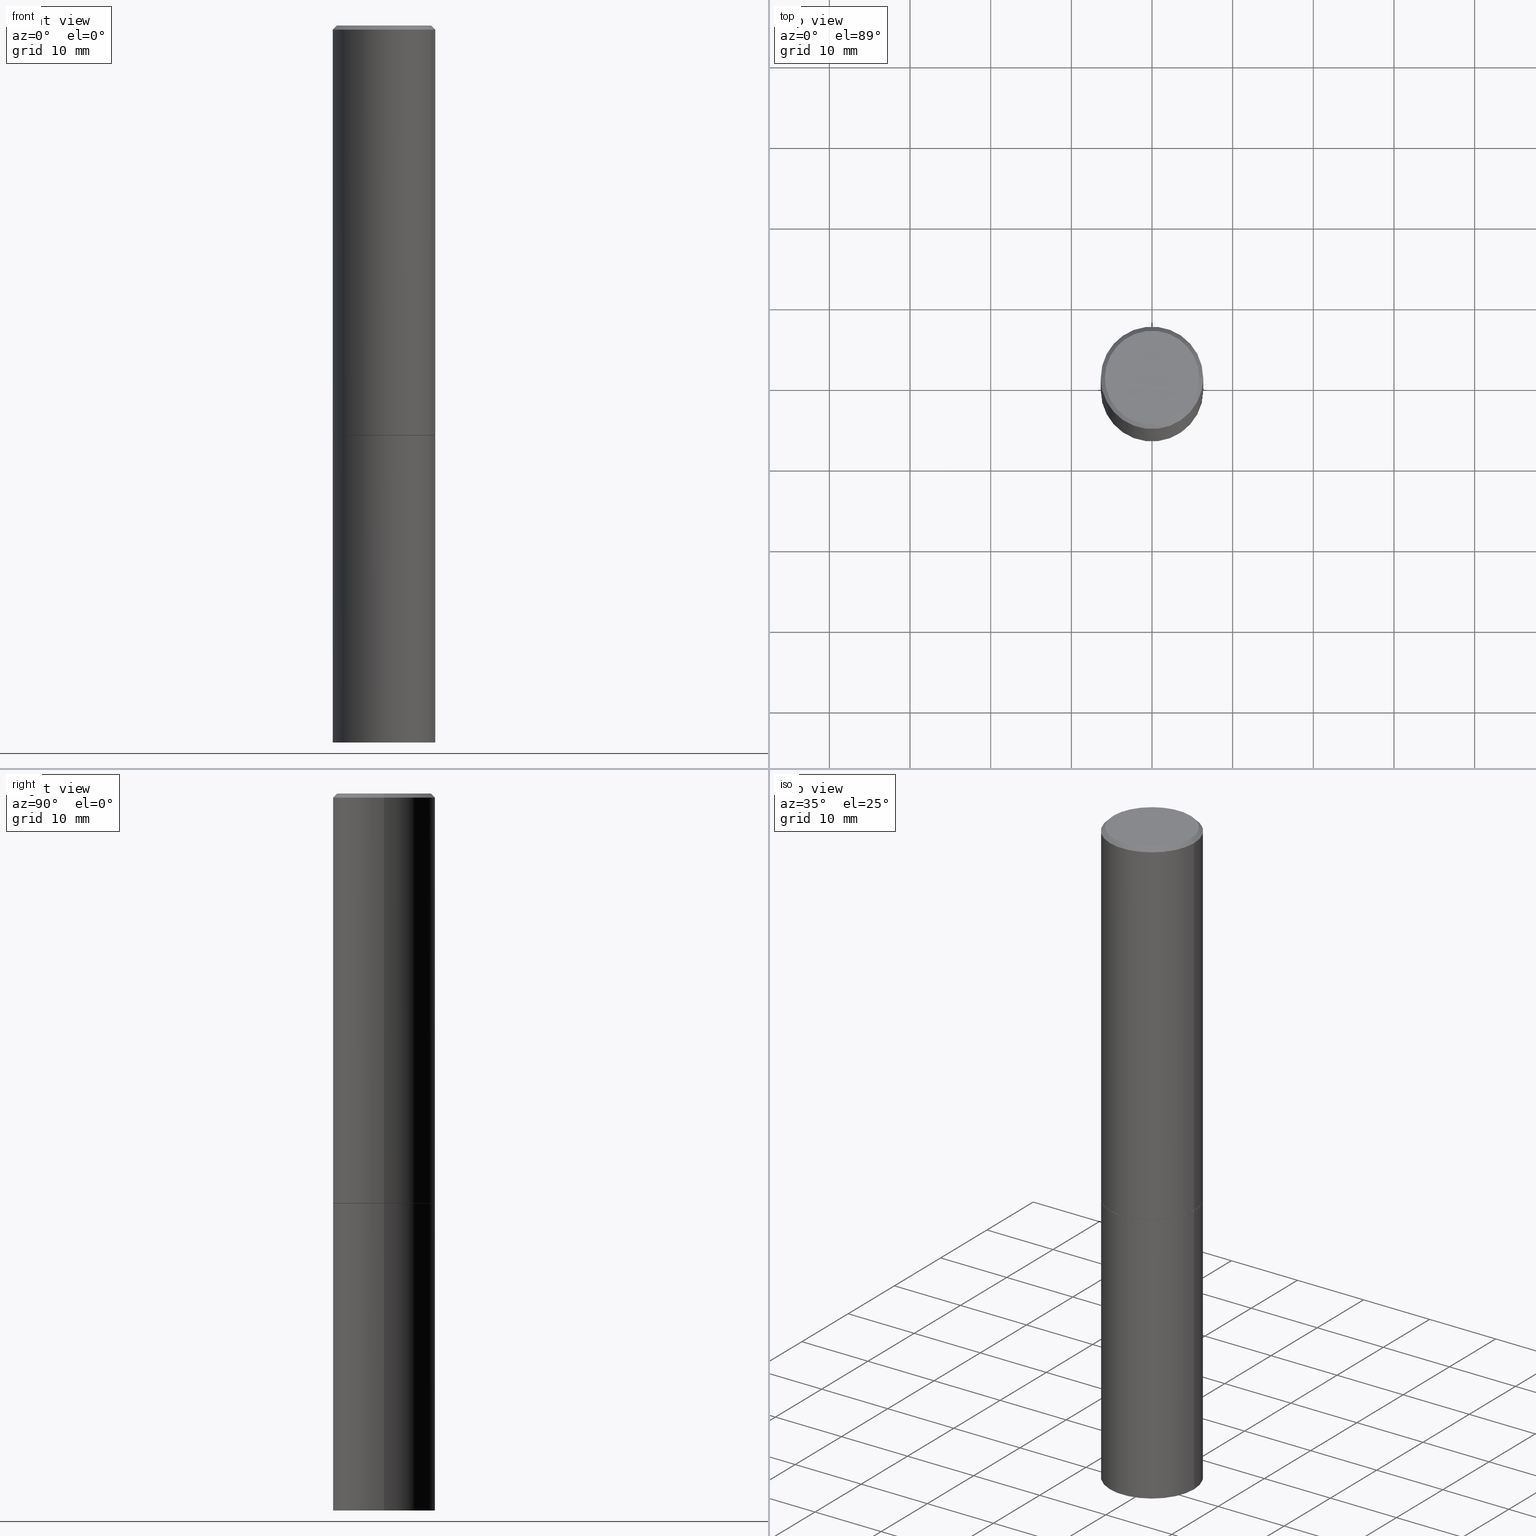
[diagram: canonical four-view strip — front | top / right | iso, engineering-drawing reading convention]
A machine part, canonical four-view strip (front | top / right | iso — engineering-drawing reading convention). The complete STEP part file that produces these views, byte-faithful:
ISO-10303-21;
HEADER;
FILE_DESCRIPTION (( 'STEP AP203' ),
    '1' );
FILE_NAME ('37510.STEP',
    '2024-02-27T22:05:50',
    ( '' ),
    ( '' ),
    'SwSTEP 2.0',
    'SolidWorks 2023',
    '' );
FILE_SCHEMA (( 'CONFIG_CONTROL_DESIGN' ));
ENDSEC;

DATA;
#1 = APPROVAL_ROLE ( '' ) ;
#2 = LINE ( 'NONE', #138, #258 ) ;
#3 = ADVANCED_FACE ( 'NONE', ( #360 ), #324, .T. ) ;
#4 = CARTESIAN_POINT ( 'NONE',  ( -0.2299999999999997602, 1.640996229256270941E-15, 4.268512490089056766E-18 ) ) ;
#5 = LINE ( 'NONE', #335, #282 ) ;
#6 = AXIS2_PLACEMENT_3D ( 'NONE', #304, #273, #74 ) ;
#7 = ADVANCED_FACE ( 'NONE', ( #47 ), #348, .T. ) ;
#8 = CARTESIAN_POINT ( 'NONE',  ( 0.2499999999999998057, -1.784954126219744611E-15, -0.02000000000000005940 ) ) ;
#9 = DIRECTION ( 'NONE',  ( -2.445468806185136877E-29, 3.491481338843145188E-15, 1.000000000000000000 ) ) ;
#10 = PLANE ( 'NONE',  #99 ) ;
#11 = CARTESIAN_POINT ( 'NONE',  ( 4.890937612370288047E-31, -6.982962677686311331E-17, -0.02000000000000005940 ) ) ;
#12 = ADVANCED_FACE ( 'NONE', ( #178 ), #333, .T. ) ;
#13 = VECTOR ( 'NONE', #9, 39.37007874015748143 ) ;
#14 =( NAMED_UNIT ( * ) SI_UNIT ( $, .STERADIAN. ) SOLID_ANGLE_UNIT ( ) );
#15 = PRODUCT_DEFINITION ( 'UNKNOWN', '', #176, #180 ) ;
#16 = EDGE_CURVE ( 'NONE', #25, #164, #83, .T. ) ;
#17 = SECURITY_CLASSIFICATION ( '', '', #321 ) ;
#18 = AXIS2_PLACEMENT_3D ( 'NONE', #223, #196, #301 ) ;
#19 = CARTESIAN_POINT ( 'NONE',  ( 0.2299999999999997602, -1.681434332853597631E-15, 4.268512490111905999E-18 ) ) ;
#20 = PERSON_AND_ORGANIZATION ( #291, #266 ) ;
#21 = ORIENTED_EDGE ( 'NONE', *, *, #289, .F. ) ;
#22 = PRODUCT ( '37510', '37510', '', ( #252 ) ) ;
#23 = DATE_AND_TIME ( #341, #106 ) ;
#24 = ORIENTED_EDGE ( 'NONE', *, *, #171, .F. ) ;
#25 = VERTEX_POINT ( 'NONE', #146 ) ;
#26 = PRODUCT_DEFINITION_SHAPE ( 'NONE', 'NONE',  #15 ) ;
#27 = DIRECTION ( 'NONE',  ( 1.000000000000000000, -6.982962677686266711E-15, 0.000000000000000000 ) ) ;
#28 = CONICAL_SURFACE ( 'NONE', #287, 0.2489999999999999991, 0.7853981633974141952 ) ;
#29 = AXIS2_PLACEMENT_3D ( 'NONE', #315, #262, #129 ) ;
#30 = CARTESIAN_POINT ( 'NONE',  ( 0.000000000000000000, 0.000000000000000000, 0.000000000000000000 ) ) ;
#31 = DIRECTION ( 'NONE',  ( -0.7071067811865469066, 2.468850131082249961E-15, -0.7071067811865482389 ) ) ;
#32 = CARTESIAN_POINT ( 'NONE',  ( 0.2500000000000000000, -1.745740669421566678E-15, 1.219044193948983948E-29 ) ) ;
#33 = CARTESIAN_POINT ( 'NONE',  ( -0.2499999999999998057, 1.675911042644702196E-15, -0.02000000000000005940 ) ) ;
#34 = VECTOR ( 'NONE', #120, 39.37007874015748143 ) ;
#35 = AXIS2_PLACEMENT_3D ( 'NONE', #51, #170, #132 ) ;
#36 = CARTESIAN_POINT ( 'NONE',  ( 0.2499999999999998890, -1.745740669421565889E-15, 1.219044193948983388E-29 ) ) ;
#37 = EDGE_CURVE ( 'NONE', #248, #109, #139, .T. ) ;
#38 = DIRECTION ( 'NONE',  ( 1.000000000000000000, -6.982962677686265922E-15, 4.876176775795935793E-29 ) ) ;
#39 = FACE_OUTER_BOUND ( 'NONE', #271, .T. ) ;
#40 = PLANE ( 'NONE',  #29 ) ;
#41 = APPROVAL_DATE_TIME ( #268, #279 ) ;
#42 = PERSON_AND_ORGANIZATION ( #291, #266 ) ;
#43 = AXIS2_PLACEMENT_3D ( 'NONE', #362, #113, #330 ) ;
#44 = VERTEX_POINT ( 'NONE', #200 ) ;
#45 = PERSON_AND_ORGANIZATION_ROLE ( 'design_supplier' ) ;
#46 = ORIENTED_EDGE ( 'NONE', *, *, #292, .F. ) ;
#47 = FACE_OUTER_BOUND ( 'NONE', #112, .T. ) ;
#48 = ORIENTED_EDGE ( 'NONE', *, *, #286, .T. ) ;
#49 = CC_DESIGN_PERSON_AND_ORGANIZATION_ASSIGNMENT ( #20, #320, ( #176 ) ) ;
#50 = ORIENTED_EDGE ( 'NONE', *, *, #224, .F. ) ;
#51 = CARTESIAN_POINT ( 'NONE',  ( 8.559140821647976968E-29, -1.222018468595100934E-14, -3.500000000000000000 ) ) ;
#52 = APPROVAL_STATUS ( 'not_yet_approved' ) ;
#53 = CIRCLE ( 'NONE', #35, 0.2500000000000000000 ) ;
#54 = FACE_OUTER_BOUND ( 'NONE', #322, .T. ) ;
#55 = PERSON_AND_ORGANIZATION_ROLE ( 'creator' ) ;
#56 = ORIENTED_EDGE ( 'NONE', *, *, #199, .F. ) ;
#57 = COORDINATED_UNIVERSAL_TIME_OFFSET ( 5, 0, .BEHIND. ) ;
#58 = DIRECTION ( 'NONE',  ( -2.445468806185136597E-29, 3.491481338843145583E-15, 1.000000000000000000 ) ) ;
#59 = AXIS2_PLACEMENT_3D ( 'NONE', #285, #165, #73 ) ;
#60 = DIRECTION ( 'NONE',  ( 2.445468806185136597E-29, -3.491481338843145583E-15, -1.000000000000000000 ) ) ;
#61 = CARTESIAN_POINT ( 'NONE',  ( 4.890937612370272633E-29, -6.982962677686290376E-15, -1.999999999999999778 ) ) ;
#62 = APPROVAL_ROLE ( '' ) ;
#63 = DIRECTION ( 'NONE',  ( -2.445468806185136597E-29, 3.491481338843145583E-15, 1.000000000000000000 ) ) ;
#64 = VECTOR ( 'NONE', #311, 39.37007874015748143 ) ;
#65 = AXIS2_PLACEMENT_3D ( 'NONE', #160, #356, #107 ) ;
#66 = DIRECTION ( 'NONE',  ( 1.000000000000000000, -6.982962677686266711E-15, 0.000000000000000000 ) ) ;
#67 =( LENGTH_UNIT ( ) NAMED_UNIT ( * ) SI_UNIT ( $, .METRE. ) );
#68 = DIMENSIONAL_EXPONENTS ( 1.000000000000000000, 0.000000000000000000, 0.000000000000000000, 0.000000000000000000, 0.000000000000000000, 0.000000000000000000, 0.000000000000000000 ) ;
#69 = FACE_OUTER_BOUND ( 'NONE', #76, .T. ) ;
#70 = AXIS2_PLACEMENT_3D ( 'NONE', #88, #342, #174 ) ;
#71 = FACE_OUTER_BOUND ( 'NONE', #77, .T. ) ;
#72 = VERTEX_POINT ( 'NONE', #33 ) ;
#73 = DIRECTION ( 'NONE',  ( 1.000000000000000000, -6.982962677686266711E-15, 4.876176775795935793E-29 ) ) ;
#74 = DIRECTION ( 'NONE',  ( 1.000000000000000000, -6.982962677686266711E-15, 4.876176775795935793E-29 ) ) ;
#75 = ORIENTED_EDGE ( 'NONE', *, *, #166, .F. ) ;
#76 = EDGE_LOOP ( 'NONE', ( #46, #274 ) ) ;
#77 = EDGE_LOOP ( 'NONE', ( #277, #141, #359, #75 ) ) ;
#78 = ORIENTED_EDGE ( 'NONE', *, *, #166, .T. ) ;
#79 = DIRECTION ( 'NONE',  ( -2.445468806185136597E-29, 3.491481338843145583E-15, 1.000000000000000000 ) ) ;
#80 = EDGE_CURVE ( 'NONE', #72, #193, #265, .T. ) ;
#81 = DIRECTION ( 'NONE',  ( 0.000000000000000000, 0.000000000000000000, 1.000000000000000000 ) ) ;
#82 = DATE_AND_TIME ( #225, #159 ) ;
#83 = LINE ( 'NONE', #121, #167 ) ;
#84 = CARTESIAN_POINT ( 'NONE',  ( 0.2489999999999999991, -8.721720384430171040E-15, -1.999999999999999778 ) ) ;
#85 = DATE_AND_TIME ( #331, #93 ) ;
#86 = CIRCLE ( 'NONE', #351, 0.2500000000000000000 ) ;
#87 = CC_DESIGN_PERSON_AND_ORGANIZATION_ASSIGNMENT ( #340, #55, ( #15 ) ) ;
#88 = CARTESIAN_POINT ( 'NONE',  ( 4.890937612370272633E-29, -6.982962677686290376E-15, -1.999999999999999778 ) ) ;
#89 = ORIENTED_EDGE ( 'NONE', *, *, #111, .F. ) ;
#90 = DATE_TIME_ROLE ( 'creation_date' ) ;
#91 = APPROVAL_DATE_TIME ( #254, #195 ) ;
#92 = DIRECTION ( 'NONE',  ( -2.445468806185136597E-29, 3.491481338843145583E-15, 1.000000000000000000 ) ) ;
#93 = LOCAL_TIME ( 17, 5, 50.00000000000000000, #281 ) ;
#94 = DIRECTION ( 'NONE',  ( -2.445468806185136877E-29, 3.491481338843145188E-15, 1.000000000000000000 ) ) ;
#95 = DIRECTION ( 'NONE',  ( 2.438088387897960049E-29, -3.491481338843145188E-15, -1.000000000000000000 ) ) ;
#96 = LENGTH_MEASURE_WITH_UNIT ( LENGTH_MEASURE( 0.02539999999999999897 ), #67 );
#97 = DIRECTION ( 'NONE',  ( -1.000000000000000000, 6.982962677686265922E-15, -4.876176775795935793E-29 ) ) ;
#98 = DIRECTION ( 'NONE',  ( 2.438088387897960049E-29, -3.491481338843145188E-15, -1.000000000000000000 ) ) ;
#99 = AXIS2_PLACEMENT_3D ( 'NONE', #186, #261, #38 ) ;
#100 = EDGE_LOOP ( 'NONE', ( #293, #275, #78, #50 ) ) ;
#101 = CARTESIAN_POINT ( 'NONE',  ( 0.000000000000000000, 0.000000000000000000, 0.000000000000000000 ) ) ;
#102 = VERTEX_POINT ( 'NONE', #206 ) ;
#103 = EDGE_CURVE ( 'NONE', #325, #102, #86, .T. ) ;
#104 = ORIENTED_EDGE ( 'NONE', *, *, #317, .T. ) ;
#105 = ORIENTED_EDGE ( 'NONE', *, *, #286, .F. ) ;
#106 = LOCAL_TIME ( 17, 5, 50.00000000000000000, #57 ) ;
#107 = DIRECTION ( 'NONE',  ( -1.000000000000000000, 6.982962677686266711E-15, 0.000000000000000000 ) ) ;
#108 = EDGE_CURVE ( 'NONE', #325, #72, #2, .T. ) ;
#109 = VERTEX_POINT ( 'NONE', #4 ) ;
#110 = APPLICATION_PROTOCOL_DEFINITION ( 'international standard', 'config_control_design', 1994, #249 ) ;
#111 = EDGE_CURVE ( 'NONE', #248, #193, #177, .T. ) ;
#112 = EDGE_LOOP ( 'NONE', ( #89, #105, #329, #299 ) ) ;
#113 = DIRECTION ( 'NONE',  ( -2.445468806185136597E-29, 3.491481338843145583E-15, 1.000000000000000000 ) ) ;
#114 = PERSON_AND_ORGANIZATION_ROLE ( 'design_owner' ) ;
#115 = FACE_OUTER_BOUND ( 'NONE', #100, .T. ) ;
#116 = VECTOR ( 'NONE', #149, 39.37007874015748854 ) ;
#117 = CARTESIAN_POINT ( 'NONE',  ( -1.043851414335219820E-46, 1.490343170380447200E-32, 4.268512490100411279E-18 ) ) ;
#118 = CARTESIAN_POINT ( 'NONE',  ( 8.559140821647976968E-29, -1.222018468595100934E-14, -3.500000000000000000 ) ) ;
#119 = LINE ( 'NONE', #32, #64 ) ;
#120 = DIRECTION ( 'NONE',  ( 0.7071067811865469066, -7.319954787623254468E-15, -0.7071067811865482389 ) ) ;
#121 = CARTESIAN_POINT ( 'NONE',  ( -0.2500000000000000000, 1.776356839400250465E-15, -1.229733772563726445E-29 ) ) ;
#122 = AXIS2_PLACEMENT_3D ( 'NONE', #234, #239, #66 ) ;
#123 = DIRECTION ( 'NONE',  ( 1.000000000000000000, -6.982962677686266711E-15, 0.000000000000000000 ) ) ;
#124 = PLANE ( 'NONE',  #154 ) ;
#125 = CIRCLE ( 'NONE', #147, 0.2500000000000000000 ) ;
#126 = CIRCLE ( 'NONE', #122, 0.2500000000000000000 ) ;
#127 = CARTESIAN_POINT ( 'NONE',  ( 0.2489999999999999991, -8.721720384430171040E-15, -1.999999999999999778 ) ) ;
#128 = PRODUCT_RELATED_PRODUCT_CATEGORY ( 'detail', '', ( #22 ) ) ;
#129 = DIRECTION ( 'NONE',  ( -1.000000000000000000, 6.982962677686265922E-15, -4.876176775795935793E-29 ) ) ;
#130 = ADVANCED_FACE ( 'NONE', ( #305 ), #28, .T. ) ;
#131 = ORIENTED_EDGE ( 'NONE', *, *, #229, .T. ) ;
#132 = DIRECTION ( 'NONE',  ( 1.000000000000000000, -6.982962677686270655E-15, 0.000000000000000000 ) ) ;
#133 = ORIENTED_EDGE ( 'NONE', *, *, #354, .T. ) ;
#134 = CC_DESIGN_APPROVAL ( #279, ( #17 ) ) ;
#135 = ORIENTED_EDGE ( 'NONE', *, *, #181, .F. ) ;
#136 = ORIENTED_EDGE ( 'NONE', *, *, #171, .T. ) ;
#137 = EDGE_LOOP ( 'NONE', ( #169, #136, #221, #241 ) ) ;
#138 = CARTESIAN_POINT ( 'NONE',  ( -0.2499999999999998890, 1.776356839400249676E-15, -1.229733772563726025E-29 ) ) ;
#139 = CIRCLE ( 'NONE', #212, 0.2299999999999997602 ) ;
#140 = DIRECTION ( 'NONE',  ( 1.000000000000000000, -6.982962677686267499E-15, 4.876225828469313926E-29 ) ) ;
#141 = ORIENTED_EDGE ( 'NONE', *, *, #16, .T. ) ;
#142 = DIRECTION ( 'NONE',  ( -2.445468806185136597E-29, 3.491481338843145583E-15, 1.000000000000000000 ) ) ;
#143 = ADVANCED_FACE ( 'NONE', ( #71 ), #188, .T. ) ;
#144 = CARTESIAN_POINT ( 'NONE',  ( 4.890937612370272633E-29, -6.982962677686290376E-15, -1.999999999999999778 ) ) ;
#145 = CARTESIAN_POINT ( 'NONE',  ( 4.890937612370272633E-29, -6.982962677686290376E-15, -1.999999999999999778 ) ) ;
#146 = CARTESIAN_POINT ( 'NONE',  ( -0.2500000000000000000, -7.825216842418397817E-15, -3.500000000000000000 ) ) ;
#147 = AXIS2_PLACEMENT_3D ( 'NONE', #145, #257, #123 ) ;
#148 = SHAPE_DEFINITION_REPRESENTATION ( #26, #363 ) ;
#149 = DIRECTION ( 'NONE',  ( -0.7071067811865232589, 7.493145998870265808E-15, 0.7071067811865715536 ) ) ;
#150 = FACE_OUTER_BOUND ( 'NONE', #246, .T. ) ;
#151 = CALENDAR_DATE ( 2024, 27, 2 ) ;
#152 = DIRECTION ( 'NONE',  ( -1.000000000000000000, 6.982962677686265922E-15, -4.876176775795935793E-29 ) ) ;
#153 = AXIS2_PLACEMENT_3D ( 'NONE', #61, #250, #343 ) ;
#154 = AXIS2_PLACEMENT_3D ( 'NONE', #263, #98, #97 ) ;
#155 = CARTESIAN_POINT ( 'NONE',  ( -0.2489999999999999991, -5.208412811295418518E-15, -1.999999999999999778 ) ) ;
#156 = DATE_TIME_ROLE ( 'classification_date' ) ;
#157 = CIRCLE ( 'NONE', #323, 0.2500000000000000000 ) ;
#158 = APPLICATION_CONTEXT ( 'configuration controlled 3d designs of mechanical parts and assemblies' ) ;
#159 = LOCAL_TIME ( 17, 5, 50.00000000000000000, #364 ) ;
#160 = CARTESIAN_POINT ( 'NONE',  ( 4.890937612370288047E-31, -6.982962677686311331E-17, -0.02000000000000005940 ) ) ;
#161 = PERSON_AND_ORGANIZATION_ROLE ( 'classification_officer' ) ;
#162 = EDGE_LOOP ( 'NONE', ( #358, #190, #306, #219 ) ) ;
#163 = ORIENTED_EDGE ( 'NONE', *, *, #312, .T. ) ;
#164 = VERTEX_POINT ( 'NONE', #253 ) ;
#165 = DIRECTION ( 'NONE',  ( -2.445468806185136597E-29, 3.491481338843145583E-15, 1.000000000000000000 ) ) ;
#166 = EDGE_CURVE ( 'NONE', #297, #44, #119, .T. ) ;
#167 = VECTOR ( 'NONE', #94, 39.37007874015748143 ) ;
#168 = APPROVAL_PERSON_ORGANIZATION ( #267, #279, #182 ) ;
#169 = ORIENTED_EDGE ( 'NONE', *, *, #181, .T. ) ;
#170 = DIRECTION ( 'NONE',  ( -2.445468806185136597E-29, 3.491481338843145583E-15, 1.000000000000000000 ) ) ;
#171 = EDGE_CURVE ( 'NONE', #346, #325, #183, .T. ) ;
#172 = CARTESIAN_POINT ( 'NONE',  ( -1.043851414335219820E-46, 1.490343170380447200E-32, 4.268512490100411279E-18 ) ) ;
#173 = EDGE_CURVE ( 'NONE', #25, #297, #157, .T. ) ;
#174 = DIRECTION ( 'NONE',  ( 1.000000000000000000, -6.982962677686266711E-15, 0.000000000000000000 ) ) ;
#175 = CC_DESIGN_PERSON_AND_ORGANIZATION_ASSIGNMENT ( #42, #45, ( #176 ) ) ;
#176 = PRODUCT_DEFINITION_FORMATION_WITH_SPECIFIED_SOURCE ( 'ANY', '', #22, .NOT_KNOWN. ) ;
#177 = LINE ( 'NONE', #205, #34 ) ;
#178 = FACE_OUTER_BOUND ( 'NONE', #162, .T. ) ;
#179 = CARTESIAN_POINT ( 'NONE',  ( -0.2489999999999999991, -5.213711265643640920E-15, -1.999999999999999778 ) ) ;
#180 = DESIGN_CONTEXT ( 'detailed design', #249, 'design' ) ;
#181 = EDGE_CURVE ( 'NONE', #361, #346, #208, .T. ) ;
#182 = APPROVAL_ROLE ( '' ) ;
#183 = LINE ( 'NONE', #179, #116 ) ;
#184 = CC_DESIGN_SECURITY_CLASSIFICATION ( #17, ( #176 ) ) ;
#185 = DIRECTION ( 'NONE',  ( 1.000000000000000000, -6.982962677686266711E-15, 0.000000000000000000 ) ) ;
#186 = CARTESIAN_POINT ( 'NONE',  ( 4.890937612370272633E-29, -6.982962677686290376E-15, -1.999999999999999778 ) ) ;
#187 = CC_DESIGN_DATE_AND_TIME_ASSIGNMENT ( #82, #90, ( #15 ) ) ;
#188 = CYLINDRICAL_SURFACE ( 'NONE', #201, 0.2500000000000000000 ) ;
#189 = FACE_OUTER_BOUND ( 'NONE', #300, .T. ) ;
#190 = ORIENTED_EDGE ( 'NONE', *, *, #108, .T. ) ;
#191 = APPROVAL ( #52, 'UNSPECIFIED' ) ;
#192 = AXIS2_PLACEMENT_3D ( 'NONE', #338, #58, #298 ) ;
#193 = VERTEX_POINT ( 'NONE', #8 ) ;
#194 = ORIENTED_EDGE ( 'NONE', *, *, #103, .T. ) ;
#195 = APPROVAL ( #278, 'UNSPECIFIED' ) ;
#196 = DIRECTION ( 'NONE',  ( -2.445468806185136597E-29, 3.491481338843145583E-15, 1.000000000000000000 ) ) ;
#197 = CC_DESIGN_APPROVAL ( #191, ( #176 ) ) ;
#198 = CALENDAR_DATE ( 2024, 27, 2 ) ;
#199 = EDGE_CURVE ( 'NONE', #109, #72, #5, .T. ) ;
#200 = CARTESIAN_POINT ( 'NONE',  ( 0.2500000000000000000, -8.728703347107857054E-15, -1.999999999999999778 ) ) ;
#201 = AXIS2_PLACEMENT_3D ( 'NONE', #30, #142, #313 ) ;
#202 = PERSON_AND_ORGANIZATION ( #291, #266 ) ;
#203 = CIRCLE ( 'NONE', #236, 0.2499999999999998057 ) ;
#204 = APPLICATION_PROTOCOL_DEFINITION ( 'international standard', 'config_control_design', 1994, #158 ) ;
#205 = CARTESIAN_POINT ( 'NONE',  ( 0.2499999999999998057, -1.784954126219744611E-15, -0.02000000000000005940 ) ) ;
#206 = CARTESIAN_POINT ( 'NONE',  ( 0.2500000000000000000, -8.725211865769012469E-15, -1.998999999999999666 ) ) ;
#207 = COORDINATED_UNIVERSAL_TIME_OFFSET ( 5, 0, .BEHIND. ) ;
#208 = CIRCLE ( 'NONE', #153, 0.2489999999999999991 ) ;
#209 =( CONVERSION_BASED_UNIT ( 'INCH', #96 ) LENGTH_UNIT ( ) NAMED_UNIT ( #68 ) );
#210 = ADVANCED_FACE ( 'NONE', ( #230 ), #318, .T. ) ;
#211 = APPROVAL_STATUS ( 'not_yet_approved' ) ;
#212 = AXIS2_PLACEMENT_3D ( 'NONE', #117, #283, #140 ) ;
#213 = CIRCLE ( 'NONE', #357, 0.2299999999999997602 ) ;
#214 = EDGE_LOOP ( 'NONE', ( #336, #194, #104, #238 ) ) ;
#215 = CC_DESIGN_PERSON_AND_ORGANIZATION_ASSIGNMENT ( #296, #161, ( #17 ) ) ;
#216 = APPROVAL_DATE_TIME ( #85, #191 ) ;
#217 = LINE ( 'NONE', #84, #218 ) ;
#218 = VECTOR ( 'NONE', #280, 39.37007874015748854 ) ;
#219 = ORIENTED_EDGE ( 'NONE', *, *, #317, .F. ) ;
#220 = ORIENTED_EDGE ( 'NONE', *, *, #103, .F. ) ;
#221 = ORIENTED_EDGE ( 'NONE', *, *, #295, .F. ) ;
#222 = ORIENTED_EDGE ( 'NONE', *, *, #37, .T. ) ;
#223 = CARTESIAN_POINT ( 'NONE',  ( 4.890937612370272633E-29, -6.982962677686290376E-15, -1.999999999999999778 ) ) ;
#224 = EDGE_CURVE ( 'NONE', #164, #44, #125, .T. ) ;
#225 = CALENDAR_DATE ( 2024, 27, 2 ) ;
#226 = AXIS2_PLACEMENT_3D ( 'NONE', #11, #60, #316 ) ;
#227 = COORDINATED_UNIVERSAL_TIME_OFFSET ( 5, 0, .BEHIND. ) ;
#228 = DIRECTION ( 'NONE',  ( 1.000000000000000000, -6.982962677686270655E-15, 0.000000000000000000 ) ) ;
#229 = EDGE_CURVE ( 'NONE', #44, #164, #126, .T. ) ;
#230 = FACE_OUTER_BOUND ( 'NONE', #328, .T. ) ;
#231 = DIRECTION ( 'NONE',  ( 1.000000000000000000, 0.000000000000000000, 0.000000000000000000 ) ) ;
#232 = CIRCLE ( 'NONE', #18, 0.2489999999999999991 ) ;
#233 = DIRECTION ( 'NONE',  ( 1.000000000000000000, -6.982962677686266711E-15, 0.000000000000000000 ) ) ;
#234 = CARTESIAN_POINT ( 'NONE',  ( 4.890937612370272633E-29, -6.982962677686290376E-15, -1.999999999999999778 ) ) ;
#235 = ADVANCED_FACE ( 'NONE', ( #39 ), #124, .F. ) ;
#236 = AXIS2_PLACEMENT_3D ( 'NONE', #240, #319, #185 ) ;
#237 = CARTESIAN_POINT ( 'NONE',  ( -0.2500000000000000000, -1.748293572161903489E-15, -1.998999999999999666 ) ) ;
#238 = ORIENTED_EDGE ( 'NONE', *, *, #80, .F. ) ;
#239 = DIRECTION ( 'NONE',  ( -2.445468806185136597E-29, 3.491481338843145583E-15, 1.000000000000000000 ) ) ;
#240 = CARTESIAN_POINT ( 'NONE',  ( 4.890937612370288047E-31, -6.982962677686311331E-17, -0.02000000000000005940 ) ) ;
#241 = ORIENTED_EDGE ( 'NONE', *, *, #312, .F. ) ;
#242 = DIRECTION ( 'NONE',  ( 1.000000000000000000, -6.982962677686267499E-15, 4.876225828469313926E-29 ) ) ;
#243 = AXIS2_PLACEMENT_3D ( 'NONE', #101, #81, #231 ) ;
#244 = MANIFOLD_SOLID_BREP ( 'Body-Move/Copy2[2]', #332 ) ;
#245 = MANIFOLD_SOLID_BREP ( 'Body-Move/Copy2[1]', #276 ) ;
#246 = EDGE_LOOP ( 'NONE', ( #48, #222 ) ) ;
#247 = DIRECTION ( 'NONE',  ( -2.445468806185136597E-29, 3.491481338843145583E-15, 1.000000000000000000 ) ) ;
#248 = VERTEX_POINT ( 'NONE', #19 ) ;
#249 = APPLICATION_CONTEXT ( 'configuration controlled 3d designs of mechanical parts and assemblies' ) ;
#250 = DIRECTION ( 'NONE',  ( -2.445468806185136597E-29, 3.491481338843145583E-15, 1.000000000000000000 ) ) ;
#251 = CARTESIAN_POINT ( 'NONE',  ( 4.888492143564087030E-29, -6.979471196347446580E-15, -1.998999999999999666 ) ) ;
#252 = MECHANICAL_CONTEXT ( 'NONE', #158, 'mechanical' ) ;
#253 = CARTESIAN_POINT ( 'NONE',  ( -0.2500000000000000000, -7.825216842418397817E-15, -1.999999999999999778 ) ) ;
#254 = DATE_AND_TIME ( #198, #334 ) ;
#255 = PERSON_AND_ORGANIZATION ( #291, #266 ) ;
#256 = DIRECTION ( 'NONE',  ( -2.445468806185136597E-29, 3.491481338843145583E-15, 1.000000000000000000 ) ) ;
#257 = DIRECTION ( 'NONE',  ( -2.445468806185136597E-29, 3.491481338843145583E-15, 1.000000000000000000 ) ) ;
#258 = VECTOR ( 'NONE', #307, 39.37007874015748143 ) ;
#259 = LINE ( 'NONE', #36, #13 ) ;
#260 = CONICAL_SURFACE ( 'NONE', #65, 0.2499999999999998057, 0.7853981633974473908 ) ;
#261 = DIRECTION ( 'NONE',  ( -2.438088387897960049E-29, 3.491481338843145188E-15, 1.000000000000000000 ) ) ;
#262 = DIRECTION ( 'NONE',  ( 2.438088387897960049E-29, -3.491481338843145188E-15, -1.000000000000000000 ) ) ;
#263 = CARTESIAN_POINT ( 'NONE',  ( 1.745740669421615390E-15, 0.2499999999999930334, -2.000000000000000444 ) ) ;
#264 =( NAMED_UNIT ( * ) PLANE_ANGLE_UNIT ( ) SI_UNIT ( $, .RADIAN. ) );
#265 = CIRCLE ( 'NONE', #365, 0.2499999999999998057 ) ;
#266 = ORGANIZATION ( 'UNSPECIFIED', 'UNSPECIFIED', '' ) ;
#267 = PERSON_AND_ORGANIZATION ( #291, #266 ) ;
#268 = DATE_AND_TIME ( #151, #290 ) ;
#269 = ADVANCED_FACE ( 'NONE', ( #115 ), #339, .T. ) ;
#270 = ADVANCED_FACE ( 'NONE', ( #54 ), #260, .T. ) ;
#271 = EDGE_LOOP ( 'NONE', ( #131, #326 ) ) ;
#272 = ORIENTED_EDGE ( 'NONE', *, *, #111, .T. ) ;
#273 = DIRECTION ( 'NONE',  ( -2.445468806185136597E-29, 3.491481338843145583E-15, 1.000000000000000000 ) ) ;
#274 = ORIENTED_EDGE ( 'NONE', *, *, #173, .F. ) ;
#275 = ORIENTED_EDGE ( 'NONE', *, *, #173, .T. ) ;
#276 = CLOSED_SHELL ( 'NONE', ( #143, #337, #235, #269 ) ) ;
#277 = ORIENTED_EDGE ( 'NONE', *, *, #292, .T. ) ;
#278 = APPROVAL_STATUS ( 'not_yet_approved' ) ;
#279 = APPROVAL ( #211, 'UNSPECIFIED' ) ;
#280 = DIRECTION ( 'NONE',  ( 0.7071067811865232589, -2.468850131082003836E-15, 0.7071067811865715536 ) ) ;
#281 = COORDINATED_UNIVERSAL_TIME_OFFSET ( 5, 0, .BEHIND. ) ;
#282 = VECTOR ( 'NONE', #31, 39.37007874015748143 ) ;
#283 = DIRECTION ( 'NONE',  ( -2.445468806185136597E-29, 3.491481338843145583E-15, 1.000000000000000000 ) ) ;
#284 = CARTESIAN_POINT ( 'NONE',  ( 4.890937612370288047E-31, -6.982962677686311331E-17, -0.02000000000000005940 ) ) ;
#285 = CARTESIAN_POINT ( 'NONE',  ( 0.000000000000000000, 0.000000000000000000, 0.000000000000000000 ) ) ;
#286 = EDGE_CURVE ( 'NONE', #109, #248, #213, .T. ) ;
#287 = AXIS2_PLACEMENT_3D ( 'NONE', #144, #256, #233 ) ;
#288 = CARTESIAN_POINT ( 'NONE',  ( 1.606081415867839490E-15, 0.2299999999999997602, -8.009064516888724897E-16 ) ) ;
#289 = EDGE_CURVE ( 'NONE', #346, #361, #232, .T. ) ;
#290 = LOCAL_TIME ( 17, 5, 50.00000000000000000, #207 ) ;
#291 = PERSON ( 'UNSPECIFIED', 'UNSPECIFIED', 'UNSPECIFIED', ('UNSPECIFIED'), ('UNSPECIFIED'), ('UNSPECIFIED') ) ;
#292 = EDGE_CURVE ( 'NONE', #297, #25, #53, .T. ) ;
#293 = ORIENTED_EDGE ( 'NONE', *, *, #16, .F. ) ;
#294 =( GEOMETRIC_REPRESENTATION_CONTEXT ( 3 ) GLOBAL_UNCERTAINTY_ASSIGNED_CONTEXT ( ( #309 ) ) GLOBAL_UNIT_ASSIGNED_CONTEXT ( ( #209, #264, #14 ) ) REPRESENTATION_CONTEXT ( 'NONE', 'WORKASPACE' ) );
#295 = EDGE_CURVE ( 'NONE', #102, #325, #308, .T. ) ;
#296 = PERSON_AND_ORGANIZATION ( #291, #266 ) ;
#297 = VERTEX_POINT ( 'NONE', #355 ) ;
#298 = DIRECTION ( 'NONE',  ( 1.000000000000000000, -6.982962677686266711E-15, 4.876176775795935793E-29 ) ) ;
#299 = ORIENTED_EDGE ( 'NONE', *, *, #80, .T. ) ;
#300 = EDGE_LOOP ( 'NONE', ( #135, #21 ) ) ;
#301 = DIRECTION ( 'NONE',  ( 1.000000000000000000, -6.982962677686266711E-15, 0.000000000000000000 ) ) ;
#302 = AXIS2_PLACEMENT_3D ( 'NONE', #288, #95, #152 ) ;
#303 = ORIENTED_EDGE ( 'NONE', *, *, #289, .T. ) ;
#304 = CARTESIAN_POINT ( 'NONE',  ( 0.000000000000000000, 0.000000000000000000, 0.000000000000000000 ) ) ;
#305 = FACE_OUTER_BOUND ( 'NONE', #137, .T. ) ;
#306 = ORIENTED_EDGE ( 'NONE', *, *, #354, .F. ) ;
#307 = DIRECTION ( 'NONE',  ( -2.445468806185136877E-29, 3.491481338843145188E-15, 1.000000000000000000 ) ) ;
#308 = CIRCLE ( 'NONE', #43, 0.2500000000000000000 ) ;
#309 = UNCERTAINTY_MEASURE_WITH_UNIT (LENGTH_MEASURE( 1.000000000000000082E-05 ), #209, 'distance_accuracy_value', 'NONE');
#310 = PERSON_AND_ORGANIZATION ( #291, #266 ) ;
#311 = DIRECTION ( 'NONE',  ( -2.445468806185136877E-29, 3.491481338843145188E-15, 1.000000000000000000 ) ) ;
#312 = EDGE_CURVE ( 'NONE', #361, #102, #217, .T. ) ;
#313 = DIRECTION ( 'NONE',  ( 1.000000000000000000, -6.982962677686266711E-15, 4.876176775795935793E-29 ) ) ;
#314 = APPROVAL_PERSON_ORGANIZATION ( #202, #195, #1 ) ;
#315 = CARTESIAN_POINT ( 'NONE',  ( 1.745740669421652072E-15, 0.2499999999999877598, -3.500000000000000888 ) ) ;
#316 = DIRECTION ( 'NONE',  ( -1.000000000000000000, 6.982962677686266711E-15, 0.000000000000000000 ) ) ;
#317 = EDGE_CURVE ( 'NONE', #102, #193, #259, .T. ) ;
#318 = CONICAL_SURFACE ( 'NONE', #70, 0.2489999999999999991, 0.7853981633974141952 ) ;
#319 = DIRECTION ( 'NONE',  ( -2.445468806185136597E-29, 3.491481338843145583E-15, 1.000000000000000000 ) ) ;
#320 = PERSON_AND_ORGANIZATION_ROLE ( 'creator' ) ;
#321 = SECURITY_CLASSIFICATION_LEVEL ( 'unclassified' ) ;
#322 = EDGE_LOOP ( 'NONE', ( #352, #272, #133, #56 ) ) ;
#323 = AXIS2_PLACEMENT_3D ( 'NONE', #118, #63, #228 ) ;
#324 = CYLINDRICAL_SURFACE ( 'NONE', #192, 0.2499999999999998890 ) ;
#325 = VERTEX_POINT ( 'NONE', #237 ) ;
#326 = ORIENTED_EDGE ( 'NONE', *, *, #224, .T. ) ;
#327 = ADVANCED_FACE ( 'NONE', ( #189 ), #10, .F. ) ;
#328 = EDGE_LOOP ( 'NONE', ( #24, #303, #163, #220 ) ) ;
#329 = ORIENTED_EDGE ( 'NONE', *, *, #199, .T. ) ;
#330 = DIRECTION ( 'NONE',  ( 1.000000000000000000, -6.982962677686266711E-15, 0.000000000000000000 ) ) ;
#331 = CALENDAR_DATE ( 2024, 27, 2 ) ;
#332 = CLOSED_SHELL ( 'NONE', ( #130, #12, #270, #7, #3, #210, #327, #350 ) ) ;
#333 = CYLINDRICAL_SURFACE ( 'NONE', #6, 0.2499999999999998890 ) ;
#334 = LOCAL_TIME ( 17, 5, 50.00000000000000000, #227 ) ;
#335 = CARTESIAN_POINT ( 'NONE',  ( -0.2499999999999998057, 1.675911042644702196E-15, -0.02000000000000005940 ) ) ;
#336 = ORIENTED_EDGE ( 'NONE', *, *, #108, .F. ) ;
#337 = ADVANCED_FACE ( 'NONE', ( #69 ), #40, .T. ) ;
#338 = CARTESIAN_POINT ( 'NONE',  ( 0.000000000000000000, 0.000000000000000000, 0.000000000000000000 ) ) ;
#339 = CYLINDRICAL_SURFACE ( 'NONE', #59, 0.2500000000000000000 ) ;
#340 = PERSON_AND_ORGANIZATION ( #291, #266 ) ;
#341 = CALENDAR_DATE ( 2024, 27, 2 ) ;
#342 = DIRECTION ( 'NONE',  ( -2.445468806185136597E-29, 3.491481338843145583E-15, 1.000000000000000000 ) ) ;
#343 = DIRECTION ( 'NONE',  ( 1.000000000000000000, -6.982962677686266711E-15, 0.000000000000000000 ) ) ;
#344 = CC_DESIGN_PERSON_AND_ORGANIZATION_ASSIGNMENT ( #255, #114, ( #22 ) ) ;
#345 = DIRECTION ( 'NONE',  ( 1.000000000000000000, -6.982962677686266711E-15, 0.000000000000000000 ) ) ;
#346 = VERTEX_POINT ( 'NONE', #155 ) ;
#347 = PLANE ( 'NONE',  #302 ) ;
#348 = CONICAL_SURFACE ( 'NONE', #226, 0.2499999999999998057, 0.7853981633974473908 ) ;
#349 = CC_DESIGN_DATE_AND_TIME_ASSIGNMENT ( #23, #156, ( #17 ) ) ;
#350 = ADVANCED_FACE ( 'NONE', ( #150 ), #347, .F. ) ;
#351 = AXIS2_PLACEMENT_3D ( 'NONE', #251, #247, #27 ) ;
#352 = ORIENTED_EDGE ( 'NONE', *, *, #37, .F. ) ;
#353 = CC_DESIGN_APPROVAL ( #195, ( #15 ) ) ;
#354 = EDGE_CURVE ( 'NONE', #193, #72, #203, .T. ) ;
#355 = CARTESIAN_POINT ( 'NONE',  ( 0.2500000000000000000, -1.396592535537257602E-14, -3.500000000000000000 ) ) ;
#356 = DIRECTION ( 'NONE',  ( 2.445468806185136597E-29, -3.491481338843145583E-15, -1.000000000000000000 ) ) ;
#357 = AXIS2_PLACEMENT_3D ( 'NONE', #172, #79, #242 ) ;
#358 = ORIENTED_EDGE ( 'NONE', *, *, #295, .T. ) ;
#359 = ORIENTED_EDGE ( 'NONE', *, *, #229, .F. ) ;
#360 = FACE_OUTER_BOUND ( 'NONE', #214, .T. ) ;
#361 = VERTEX_POINT ( 'NONE', #127 ) ;
#362 = CARTESIAN_POINT ( 'NONE',  ( 4.888492143564087030E-29, -6.979471196347446580E-15, -1.998999999999999666 ) ) ;
#363 = ADVANCED_BREP_SHAPE_REPRESENTATION ( '37510', ( #245, #244, #243 ), #294 ) ;
#364 = COORDINATED_UNIVERSAL_TIME_OFFSET ( 5, 0, .BEHIND. ) ;
#365 = AXIS2_PLACEMENT_3D ( 'NONE', #284, #92, #345 ) ;
#366 = APPROVAL_PERSON_ORGANIZATION ( #310, #191, #62 ) ;
ENDSEC;
END-ISO-10303-21;
